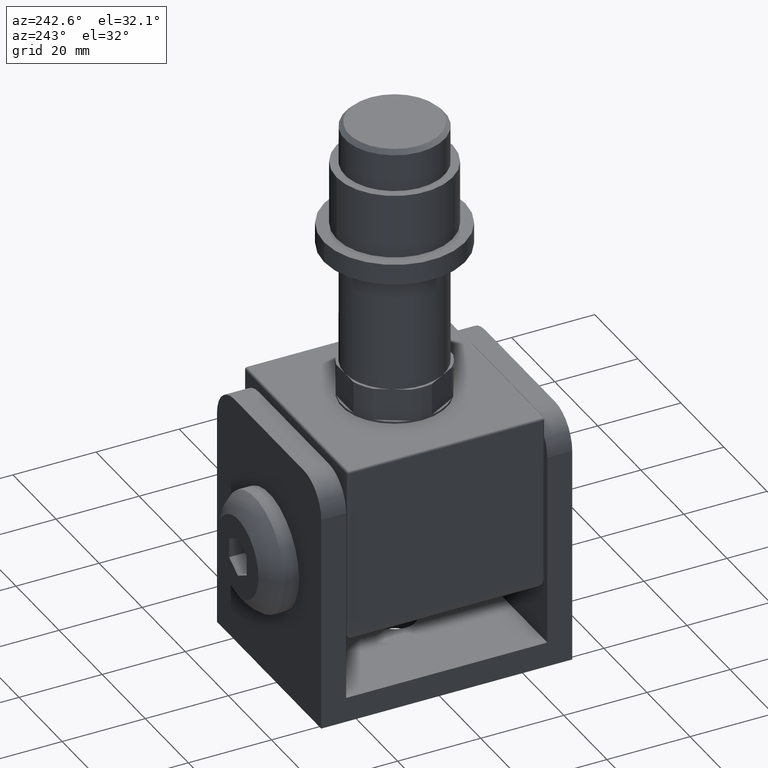
[diagram: clean part render]
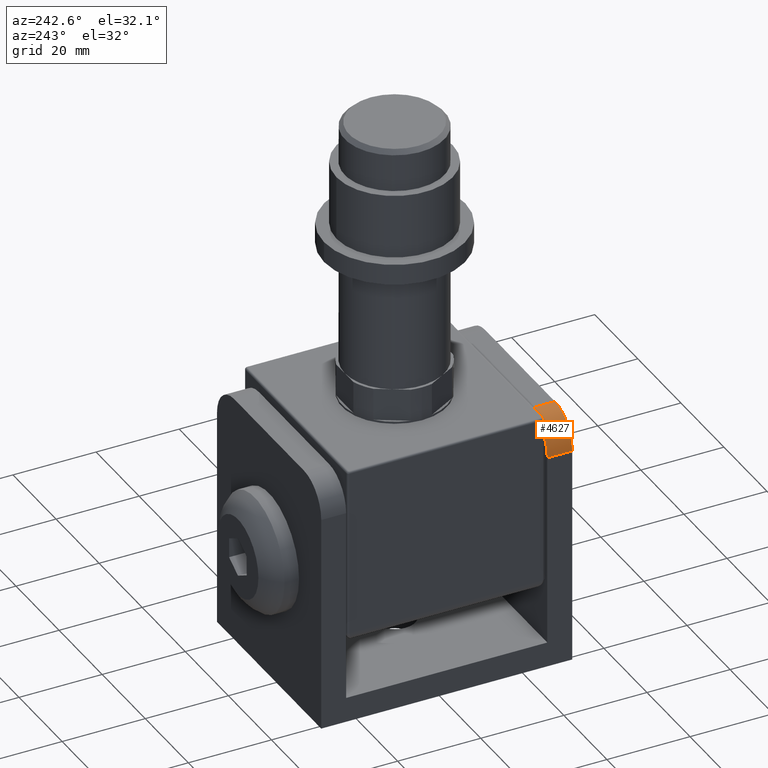
[diagram: same view with one face highlighted and labeled with its STEP entity id]
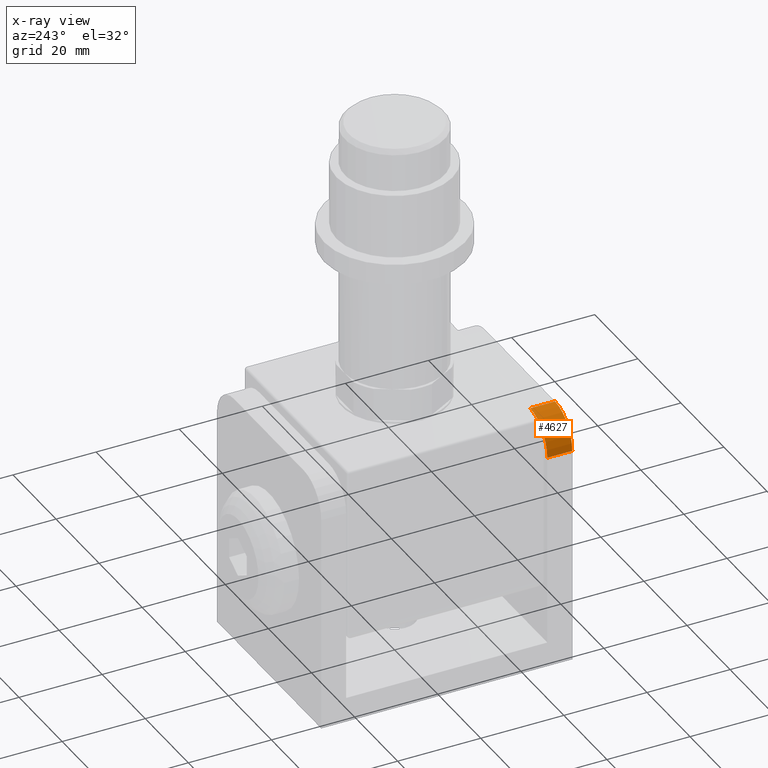
[diagram: x-ray of the same camera — body ghosted, the highlighted face saturated]
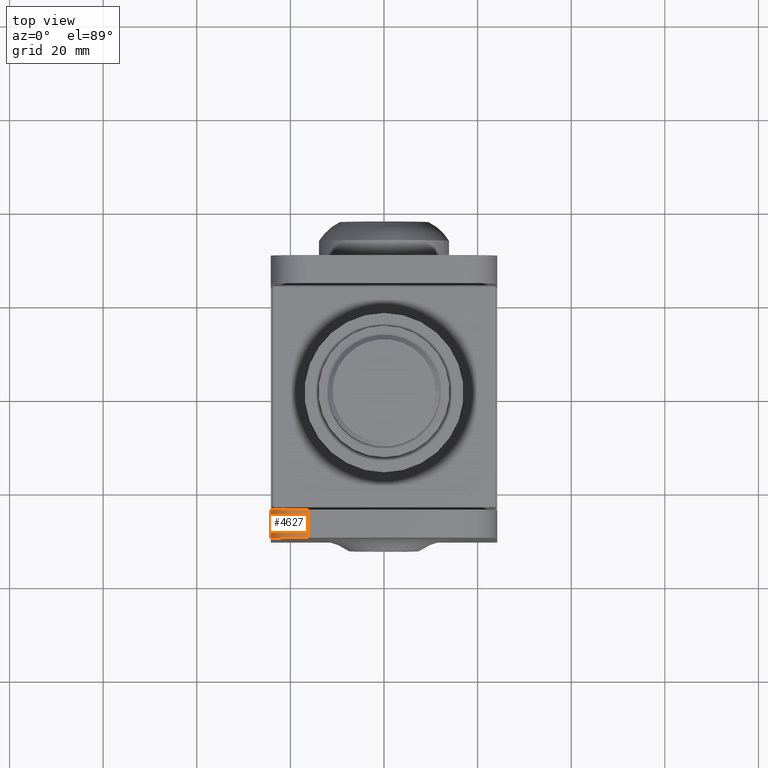
[diagram: same view with one face highlighted and labeled with its STEP entity id]
A machine part, auxiliary view. The second image highlights one B-rep face of the part: STEP entity #4627.
The next image is the same camera in x-ray: the body ghosted, the highlighted face saturated — about 0% of this face is hidden behind the body in this view.
A second angle (top view) of the same face is appended — the face is thin or edge-on in the first view.
In plain terms, the highlighted cylindrical surface (partial cylindrical patch) has radius 8 mm, axis along (0, 1, -0).
Its self-contained STEP definition (entity closure, byte-faithful):
#247 = CARTESIAN_POINT ( 'NONE',  ( -16.19999999999999929, -30.20000000000000284, 30.30000000000000071 ) ) ;
#705 = CARTESIAN_POINT ( 'NONE',  ( -24.19999999999999929, -30.20000000000000284, 22.30000000000000071 ) ) ;
#1118 = ORIENTED_EDGE ( 'NONE', *, *, #1394, .F. ) ;
#1394 = EDGE_CURVE ( 'NONE', #10467, #6588, #5794, .T. ) ;
#3550 = AXIS2_PLACEMENT_3D ( 'NONE', #4791, #4998, #8551 ) ;
#4413 = CARTESIAN_POINT ( 'NONE',  ( -16.19999999999999929, -30.20000000000000284, 30.30000000000000071 ) ) ;
#4627 = ADVANCED_FACE ( 'NONE', ( #10770 ), #5154, .T. ) ;
#4791 = CARTESIAN_POINT ( 'NONE',  ( -16.19999999999999929, -30.20000000000000284, 22.30000000000000071 ) ) ;
#4998 = DIRECTION ( 'NONE',  ( 0.000000000000000000, -1.000000000000000000, -1.145031997344426992E-16 ) ) ;
#5154 = CYLINDRICAL_SURFACE ( 'NONE', #14825, 8.000000000000000000 ) ;
#5560 = CARTESIAN_POINT ( 'NONE',  ( -24.19999999999999929, -24.20000000000000284, 22.29999999999999361 ) ) ;
#5794 = LINE ( 'NONE', #4413, #11792 ) ;
#5799 = EDGE_LOOP ( 'NONE', ( #12166, #11620, #5810, #1118 ) ) ;
#5810 = ORIENTED_EDGE ( 'NONE', *, *, #10532, .F. ) ;
#6324 = LINE ( 'NONE', #5560, #15525 ) ;
#6588 = VERTEX_POINT ( 'NONE', #247 ) ;
#6770 = DIRECTION ( 'NONE',  ( 0.000000000000000000, 0.000000000000000000, -1.000000000000000000 ) ) ;
#7177 = CARTESIAN_POINT ( 'NONE',  ( -16.19999999999999929, -30.20000000000001350, 22.30000000000000071 ) ) ;
#7473 = DIRECTION ( 'NONE',  ( 0.000000000000000000, 1.301042606982605321E-15, 1.000000000000000000 ) ) ;
#7927 = DIRECTION ( 'NONE',  ( 0.000000000000000000, -1.000000000000000000, 1.156482317317869161E-15 ) ) ;
#8108 = AXIS2_PLACEMENT_3D ( 'NONE', #15277, #10302, #6770 ) ;
#8551 = DIRECTION ( 'NONE',  ( 0.000000000000000000, 0.000000000000000000, 1.000000000000000000 ) ) ;
#8759 = VERTEX_POINT ( 'NONE', #705 ) ;
#8777 = EDGE_CURVE ( 'NONE', #8759, #11886, #6324, .T. ) ;
#9661 = CIRCLE ( 'NONE', #3550, 8.000000000000000000 ) ;
#10302 = DIRECTION ( 'NONE',  ( -0.000000000000000000, 1.000000000000000000, -0.000000000000000000 ) ) ;
#10467 = VERTEX_POINT ( 'NONE', #12877 ) ;
#10532 = EDGE_CURVE ( 'NONE', #6588, #8759, #9661, .T. ) ;
#10761 = DIRECTION ( 'NONE',  ( 0.000000000000000000, 1.000000000000000000, -1.156482317317869161E-15 ) ) ;
#10770 = FACE_OUTER_BOUND ( 'NONE', #5799, .T. ) ;
#11620 = ORIENTED_EDGE ( 'NONE', *, *, #8777, .F. ) ;
#11792 = VECTOR ( 'NONE', #7927, 1000.000000000000000 ) ;
#11886 = VERTEX_POINT ( 'NONE', #14546 ) ;
#12166 = ORIENTED_EDGE ( 'NONE', *, *, #14547, .F. ) ;
#12877 = CARTESIAN_POINT ( 'NONE',  ( -16.19999999999999929, -24.19999999999999218, 30.29999999999999361 ) ) ;
#14546 = CARTESIAN_POINT ( 'NONE',  ( -24.19999999999999929, -24.19999999999999218, 22.29999999999999361 ) ) ;
#14547 = EDGE_CURVE ( 'NONE', #11886, #10467, #14773, .T. ) ;
#14773 = CIRCLE ( 'NONE', #8108, 8.000000000000000000 ) ;
#14825 = AXIS2_PLACEMENT_3D ( 'NONE', #7177, #10761, #7473 ) ;
#15176 = DIRECTION ( 'NONE',  ( -0.000000000000000000, 1.000000000000000000, -1.156482317317869161E-15 ) ) ;
#15277 = CARTESIAN_POINT ( 'NONE',  ( -16.19999999999999929, -24.19999999999999218, 22.29999999999999361 ) ) ;
#15525 = VECTOR ( 'NONE', #15176, 1000.000000000000000 ) ;